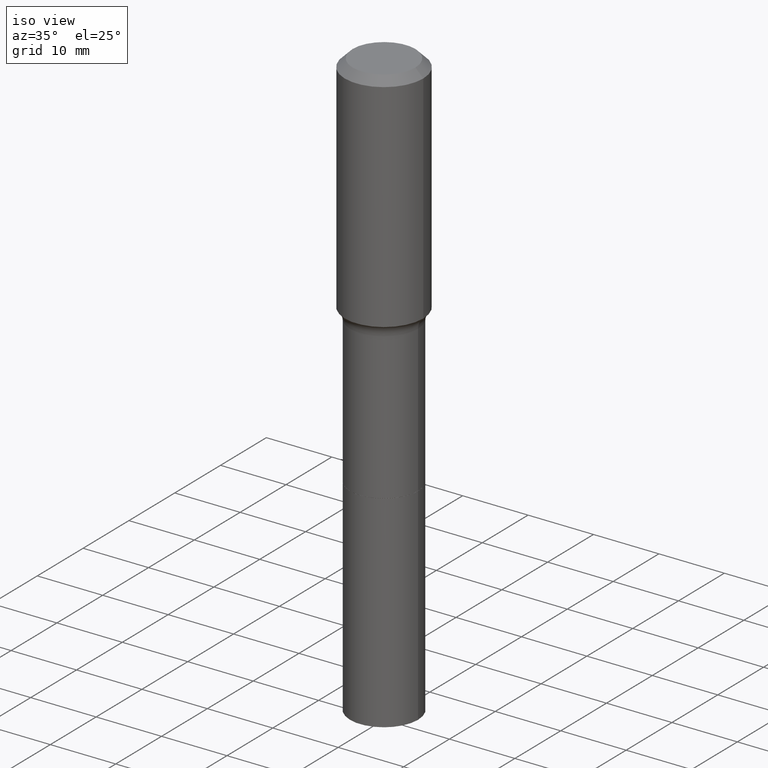
[diagram: clean part render]
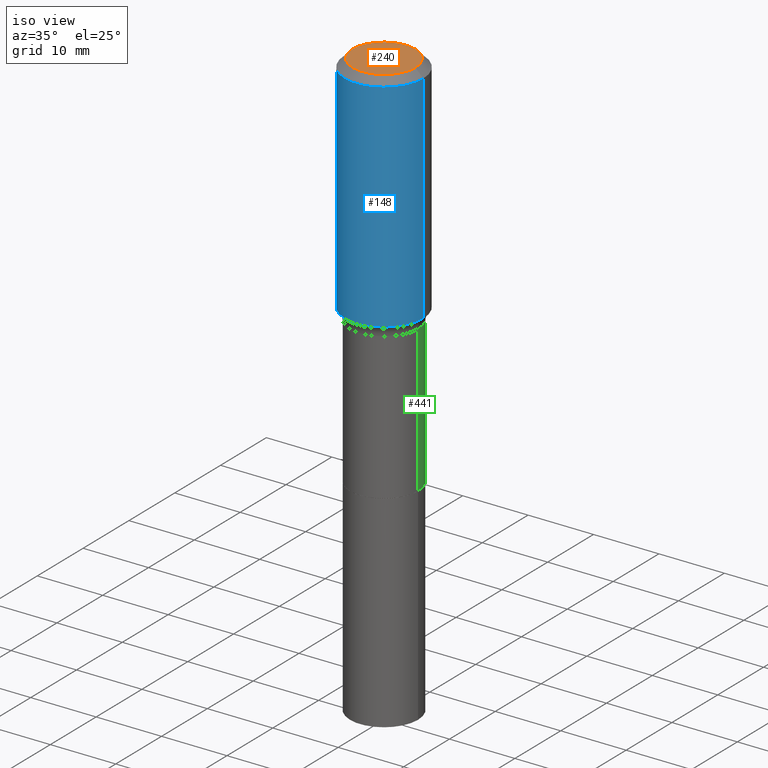
[diagram: same view with three faces highlighted in distinct colors, each labeled with its STEP entity id]
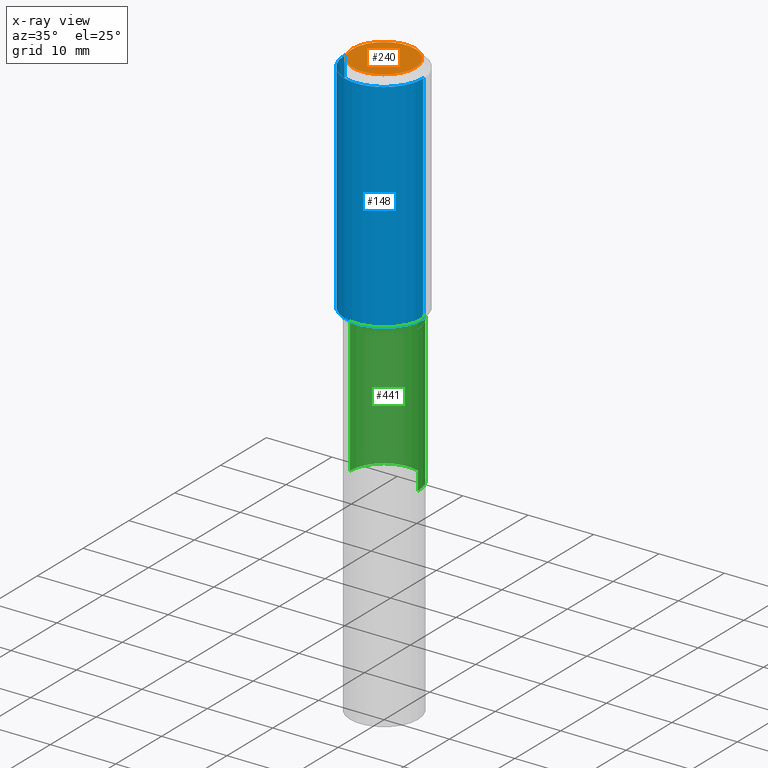
[diagram: x-ray of the same camera — body ghosted, the three highlighted faces saturated]
A machine part, iso view with three faces highlighted in distinct colors.
The next image is the same camera in x-ray (body ghosted, the three faces saturated) — at least one of them is partly hidden behind the body in this view.
Their STEP definitions:

[orange] entity #240 — the highlighted planar face has unit normal (0, -0, -1).
#5 = DIRECTION ( 'NONE',  ( -2.445468806185136597E-29, 3.491481338843145583E-15, 1.000000000000000000 ) ) ;
#39 = PLANE ( 'NONE',  #458 ) ;
#71 = AXIS2_PLACEMENT_3D ( 'NONE', #122, #5, #236 ) ;
#75 = CARTESIAN_POINT ( 'NONE',  ( -9.427742298522546243E-47, 1.346031739168365344E-32, 3.855188123715862256E-18 ) ) ;
#79 = DIRECTION ( 'NONE',  ( 1.000000000000000000, -6.982962677686266711E-15, 4.876185090822587894E-29 ) ) ;
#122 = CARTESIAN_POINT ( 'NONE',  ( -9.427742298522546243E-47, 1.346031739168365344E-32, 3.855188123715862256E-18 ) ) ;
#125 = VERTEX_POINT ( 'NONE', #271 ) ;
#138 = ORIENTED_EDGE ( 'NONE', *, *, #315, .T. ) ;
#180 = ORIENTED_EDGE ( 'NONE', *, *, #231, .T. ) ;
#193 = AXIS2_PLACEMENT_3D ( 'NONE', #75, #476, #79 ) ;
#227 = FACE_OUTER_BOUND ( 'NONE', #289, .T. ) ;
#231 = EDGE_CURVE ( 'NONE', #237, #125, #479, .T. ) ;
#236 = DIRECTION ( 'NONE',  ( 1.000000000000000000, -6.982962677686266711E-15, 4.876185090822587894E-29 ) ) ;
#237 = VERTEX_POINT ( 'NONE', #483 ) ;
#240 = ADVANCED_FACE ( 'NONE', ( #227 ), #39, .F. ) ;
#265 = CIRCLE ( 'NONE', #193, 0.1889600000000000168 ) ;
#271 = CARTESIAN_POINT ( 'NONE',  ( 0.1889600000000000168, -1.540873453589747738E-15, 3.855188123725863225E-18 ) ) ;
#289 = EDGE_LOOP ( 'NONE', ( #180, #138 ) ) ;
#315 = EDGE_CURVE ( 'NONE', #125, #237, #265, .T. ) ;
#353 = CARTESIAN_POINT ( 'NONE',  ( -4.713871149261273121E-47, 6.730158695841826722E-33, 1.927594061857931128E-18 ) ) ;
#393 = DIRECTION ( 'NONE',  ( -1.000000000000000000, 6.982962677686265922E-15, -4.876176775795935793E-29 ) ) ;
#400 = DIRECTION ( 'NONE',  ( 2.438088387897960049E-29, -3.491481338843145188E-15, -1.000000000000000000 ) ) ;
#458 = AXIS2_PLACEMENT_3D ( 'NONE', #353, #400, #393 ) ;
#476 = DIRECTION ( 'NONE',  ( -2.445468806185136597E-29, 3.491481338843145583E-15, 1.000000000000000000 ) ) ;
#479 = CIRCLE ( 'NONE', #71, 0.1889600000000000168 ) ;
#483 = CARTESIAN_POINT ( 'NONE',  ( -0.1889600000000000168, 1.401969416799070942E-15, 3.855188123706346622E-18 ) ) ;

[blue] entity #148 — the highlighted cylindrical surface (partial cylindrical patch) has radius 5.9995 mm, axis along (-0, 0, 1).
#17 = CARTESIAN_POINT ( 'NONE',  ( 0.2362000000000000766, -1.649375784469496722E-15, 1.151752954443000368E-29 ) ) ;
#30 = CARTESIAN_POINT ( 'NONE',  ( 0.2362000000000001598, -6.369884906837703528E-15, -1.352007547585026614 ) ) ;
#44 = VECTOR ( 'NONE', #165, 39.37007874015748143 ) ;
#55 = ORIENTED_EDGE ( 'NONE', *, *, #491, .T. ) ;
#80 = CARTESIAN_POINT ( 'NONE',  ( 0.2361999999999999933, -1.814313362916447440E-15, -0.04724000000000028870 ) ) ;
#88 = CARTESIAN_POINT ( 'NONE',  ( -0.2362000000000001598, -3.042207180502848242E-15, -1.352007547585026614 ) ) ;
#108 = DIRECTION ( 'NONE',  ( 1.000000000000000000, -6.982962677686266711E-15, 0.000000000000000000 ) ) ;
#137 = DIRECTION ( 'NONE',  ( -2.445468806185136597E-29, 3.491481338843145583E-15, 1.000000000000000000 ) ) ;
#139 = CARTESIAN_POINT ( 'NONE',  ( -0.2362000000000000766, 1.678301941865357183E-15, -1.161852468318209177E-29 ) ) ;
#143 = LINE ( 'NONE', #139, #145 ) ;
#145 = VECTOR ( 'NONE', #172, 39.37007874015748143 ) ;
#148 = ADVANCED_FACE ( 'NONE', ( #152 ), #481, .T. ) ;
#152 = FACE_OUTER_BOUND ( 'NONE', #259, .T. ) ;
#156 = DIRECTION ( 'NONE',  ( 1.000000000000000000, -6.982962677686266711E-15, 4.876176775795935793E-29 ) ) ;
#158 = EDGE_CURVE ( 'NONE', #461, #467, #160, .T. ) ;
#160 = CIRCLE ( 'NONE', #459, 0.2361999999999999933 ) ;
#165 = DIRECTION ( 'NONE',  ( -2.445468806185136877E-29, 3.491481338843145188E-15, 1.000000000000000000 ) ) ;
#172 = DIRECTION ( 'NONE',  ( -2.445468806185136877E-29, 3.491481338843145188E-15, 1.000000000000000000 ) ) ;
#178 = AXIS2_PLACEMENT_3D ( 'NONE', #502, #256, #500 ) ;
#179 = VERTEX_POINT ( 'NONE', #30 ) ;
#181 = EDGE_CURVE ( 'NONE', #179, #467, #366, .T. ) ;
#230 = CARTESIAN_POINT ( 'NONE',  ( 0.000000000000000000, 0.000000000000000000, 0.000000000000000000 ) ) ;
#253 = AXIS2_PLACEMENT_3D ( 'NONE', #230, #395, #156 ) ;
#256 = DIRECTION ( 'NONE',  ( -2.445468806185136597E-29, 3.491481338843145583E-15, 1.000000000000000000 ) ) ;
#259 = EDGE_LOOP ( 'NONE', ( #367, #55, #374, #478 ) ) ;
#282 = CIRCLE ( 'NONE', #178, 0.2362000000000001598 ) ;
#296 = VERTEX_POINT ( 'NONE', #88 ) ;
#316 = CARTESIAN_POINT ( 'NONE',  ( 1.155239464041865682E-30, -1.649375784469512105E-16, -0.04724000000000028870 ) ) ;
#348 = CARTESIAN_POINT ( 'NONE',  ( -0.2361999999999999933, -7.644214085422213814E-16, -0.04724000000000028870 ) ) ;
#366 = LINE ( 'NONE', #17, #44 ) ;
#367 = ORIENTED_EDGE ( 'NONE', *, *, #509, .F. ) ;
#374 = ORIENTED_EDGE ( 'NONE', *, *, #181, .T. ) ;
#395 = DIRECTION ( 'NONE',  ( -2.445468806185136597E-29, 3.491481338843145583E-15, 1.000000000000000000 ) ) ;
#459 = AXIS2_PLACEMENT_3D ( 'NONE', #316, #137, #108 ) ;
#461 = VERTEX_POINT ( 'NONE', #348 ) ;
#467 = VERTEX_POINT ( 'NONE', #80 ) ;
#478 = ORIENTED_EDGE ( 'NONE', *, *, #158, .F. ) ;
#481 = CYLINDRICAL_SURFACE ( 'NONE', #253, 0.2362000000000000766 ) ;
#491 = EDGE_CURVE ( 'NONE', #296, #179, #282, .T. ) ;
#500 = DIRECTION ( 'NONE',  ( 1.000000000000000000, -6.982962677686268288E-15, 0.000000000000000000 ) ) ;
#502 = CARTESIAN_POINT ( 'NONE',  ( 3.306292283346049435E-29, -4.720509122368206214E-15, -1.352007547585026614 ) ) ;
#509 = EDGE_CURVE ( 'NONE', #296, #461, #143, .T. ) ;

[green] entity #441 — the highlighted cylindrical surface (partial cylindrical patch) has radius 5.1994 mm, axis along (-0, 0, 1).
#2 = CARTESIAN_POINT ( 'NONE',  ( 0.2046999999999999653, -1.429412460122378595E-15, 9.981533860054279593E-30 ) ) ;
#33 = DIRECTION ( 'NONE',  ( -2.445468806185136597E-29, 3.491481338843145583E-15, 1.000000000000000000 ) ) ;
#41 = EDGE_CURVE ( 'NONE', #335, #318, #514, .T. ) ;
#46 = EDGE_LOOP ( 'NONE', ( #170, #465, #281, #340 ) ) ;
#54 = CARTESIAN_POINT ( 'NONE',  ( 0.2047000000000000486, -9.455629761855001117E-15, -2.298799999999999955 ) ) ;
#115 = DIRECTION ( 'NONE',  ( -2.445468806185136877E-29, 3.491481338843145188E-15, 1.000000000000000000 ) ) ;
#117 = EDGE_CURVE ( 'NONE', #335, #370, #438, .T. ) ;
#144 = EDGE_CURVE ( 'NONE', #370, #217, #387, .T. ) ;
#170 = ORIENTED_EDGE ( 'NONE', *, *, #41, .T. ) ;
#185 = DIRECTION ( 'NONE',  ( 1.000000000000000000, -6.982962677686266711E-15, 4.876176775795936353E-29 ) ) ;
#190 = DIRECTION ( 'NONE',  ( -2.445468806185136597E-29, 3.491481338843145583E-15, 1.000000000000000000 ) ) ;
#217 = VERTEX_POINT ( 'NONE', #224 ) ;
#224 = CARTESIAN_POINT ( 'NONE',  ( -0.2046999999999999098, -5.032865921536581155E-15, -1.417300000000000004 ) ) ;
#228 = CARTESIAN_POINT ( 'NONE',  ( 3.465962939006193759E-29, -4.948476501542390442E-15, -1.417300000000000004 ) ) ;
#233 = AXIS2_PLACEMENT_3D ( 'NONE', #384, #437, #185 ) ;
#281 = ORIENTED_EDGE ( 'NONE', *, *, #144, .F. ) ;
#298 = AXIS2_PLACEMENT_3D ( 'NONE', #381, #33, #501 ) ;
#307 = VECTOR ( 'NONE', #477, 39.37007874015748143 ) ;
#309 = CARTESIAN_POINT ( 'NONE',  ( -0.2046999999999999653, 1.454480980100924834E-15, -1.006906012975179189E-29 ) ) ;
#313 = EDGE_CURVE ( 'NONE', #318, #217, #485, .T. ) ;
#318 = VERTEX_POINT ( 'NONE', #332 ) ;
#326 = CARTESIAN_POINT ( 'NONE',  ( 0.2046999999999999098, -6.377888961664768052E-15, -1.417300000000000004 ) ) ;
#332 = CARTESIAN_POINT ( 'NONE',  ( -0.2047000000000000763, -5.032865921536578788E-15, -2.298799999999999955 ) ) ;
#335 = VERTEX_POINT ( 'NONE', #54 ) ;
#340 = ORIENTED_EDGE ( 'NONE', *, *, #117, .F. ) ;
#341 = FACE_OUTER_BOUND ( 'NONE', #46, .T. ) ;
#345 = AXIS2_PLACEMENT_3D ( 'NONE', #228, #190, #350 ) ;
#350 = DIRECTION ( 'NONE',  ( 1.000000000000000000, -6.982962677686264344E-15, 0.000000000000000000 ) ) ;
#370 = VERTEX_POINT ( 'NONE', #326 ) ;
#381 = CARTESIAN_POINT ( 'NONE',  ( 5.621643691658391897E-29, -8.026217301732623508E-15, -2.298799999999999955 ) ) ;
#384 = CARTESIAN_POINT ( 'NONE',  ( 0.000000000000000000, 0.000000000000000000, 0.000000000000000000 ) ) ;
#387 = CIRCLE ( 'NONE', #345, 0.2046999999999999098 ) ;
#428 = CYLINDRICAL_SURFACE ( 'NONE', #233, 0.2046999999999999653 ) ;
#437 = DIRECTION ( 'NONE',  ( -2.445468806185136597E-29, 3.491481338843145583E-15, 1.000000000000000000 ) ) ;
#438 = LINE ( 'NONE', #2, #307 ) ;
#441 = ADVANCED_FACE ( 'NONE', ( #341 ), #428, .T. ) ;
#465 = ORIENTED_EDGE ( 'NONE', *, *, #313, .T. ) ;
#477 = DIRECTION ( 'NONE',  ( -2.445468806185136877E-29, 3.491481338843145188E-15, 1.000000000000000000 ) ) ;
#485 = LINE ( 'NONE', #309, #488 ) ;
#488 = VECTOR ( 'NONE', #115, 39.37007874015748143 ) ;
#501 = DIRECTION ( 'NONE',  ( 1.000000000000000000, -6.982962677686264344E-15, 0.000000000000000000 ) ) ;
#514 = CIRCLE ( 'NONE', #298, 0.2047000000000000486 ) ;